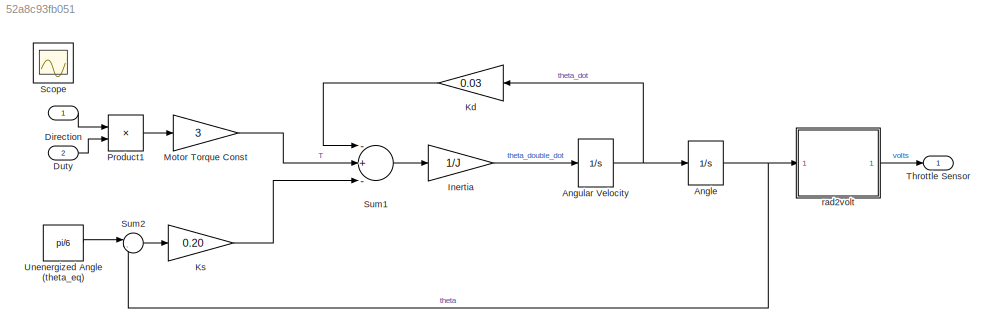
MODEL slx_52a8c93fb051
KIND model
CONFIG AbsTol = auto
CONFIG EnableMultiTasking = on
CONFIG FixedStep = auto
CONFIG MaxStep = auto
CONFIG MinStep = auto
CONFIG PreLoadFcn = etc_plant_data;
CONFIG RelTol = 1e-3
CONFIG SampleTimeConstraint = Unconstrained
CONFIG Solver = ode45
CONFIG SolverName = ode45
CONFIG StartTime = 0.0
CONFIG StopTime = 20.0
BLOCK [Integrator] Angle
  AttributesFormatString = %<LowerSaturationLimit> <= th <= %<UpperSaturationLimit>
  InitialCondition = pi/6
  LimitOutput = on
  LowerSaturationLimit = 0
  Ports = [1, 1]
  UpperSaturationLimit = pi/2
BLOCK [Integrator] Angular Velocity
  Ports = [1, 1]
BLOCK [Inport] Direction
  IconDisplay = Port number
BLOCK [Inport] Duty
  IconDisplay = Port number
  Port = 2
BLOCK [Gain] Inertia
  Gain = 1/J
BLOCK [Gain] Kd
  Gain = 0.03
BLOCK [Gain] Ks
  Gain = 0.20
BLOCK [Gain] Motor Torque Const
  Gain = 3
BLOCK [Product] Product1
  InputSameDT = off
  Ports = [2, 1]
  RndMeth = Floor
BLOCK [Scope] Scope
  Floating = off
  IOType = viewer
  NumInputPorts = 1
  Ports = []
  ScopeSpecificationString = Simulink.scopes.TimeScopeBlockCfg('CurrentConfiguration', extmgr.ConfigurationSet(extmgr.Configuration('Core','General UI',true),extmgr.Configuration('Core','Source UI',true),extmgr.Configuration('Sources','WiredSimulink',true,'DataLoggingMaxPoints','7500','DataLoggingLimitDataPoints',true,'DataLoggingSaveFormat','Array','DataLoggingDecimation','1','DataLoggingDecimateData',true),extmgr.Configurat...<+1844ch>
BLOCK [Sum] Sum1
  InputSameDT = off
  Inputs = -+-
  OutDataTypeStr = Inherit: Inherit via internal rule
  Ports = [3, 1]
BLOCK [Sum] Sum2
  IconShape = round
  InputSameDT = off
  Inputs = |-+
  OutDataTypeStr = Inherit: Inherit via internal rule
  Ports = [2, 1]
BLOCK [Outport] Throttle Sensor
  IconDisplay = Port number
BLOCK [Constant] Unenergized Angle (theta_eq)
  Value = pi/6
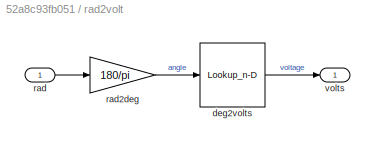
BLOCK [SubSystem] rad2volt
  Ports = [1, 1]
  RequestExecContextInheritance = off
BLOCK [Lookup_n-D] rad2volt/deg2volts
  BreakpointsForDimension1 = [0 90]
  NumberOfTableDimensions = 1
  Ports = [1, 1]
  RndMeth = Simplest
  Table = [0.5 4.5]
BLOCK [Inport] rad2volt/rad
  IconDisplay = Port number
BLOCK [Gain] rad2volt/rad2deg
  Gain = 180/pi
BLOCK [Outport] rad2volt/volts
  IconDisplay = Port number
NET Angle:1 -> Sum2:2, rad2volt:1
NET Angular Velocity:1 -> Angle:1, Kd:1
LINE Direction:1 -> Product1:1
LINE Duty:1 -> Product1:2
LINE Inertia:1 -> Angular Velocity:1
LINE Kd:1 -> Sum1:1
LINE Ks:1 -> Sum1:3
LINE Motor Torque Const:1 -> Sum1:2
LINE Product1:1 -> Motor Torque Const:1
LINE Sum1:1 -> Inertia:1
LINE Sum2:1 -> Ks:1
LINE Unenergized Angle (theta_eq):1 -> Sum2:1
LINE rad2volt/deg2volts:1 -> rad2volt/volts:1
LINE rad2volt/rad2deg:1 -> rad2volt/deg2volts:1
LINE rad2volt/rad:1 -> rad2volt/rad2deg:1
LINE rad2volt:1 -> Throttle Sensor:1
note: NET lines group one-source signal fan-out (src -> all destinations, sorted); 1:1 wires keep LINE
